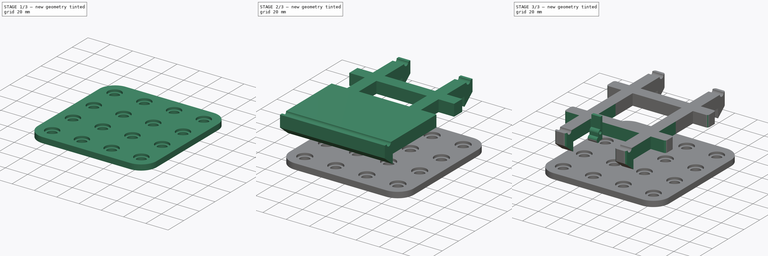
[diagram: build sequence overview — one tinted view per stage of 3, left to right]
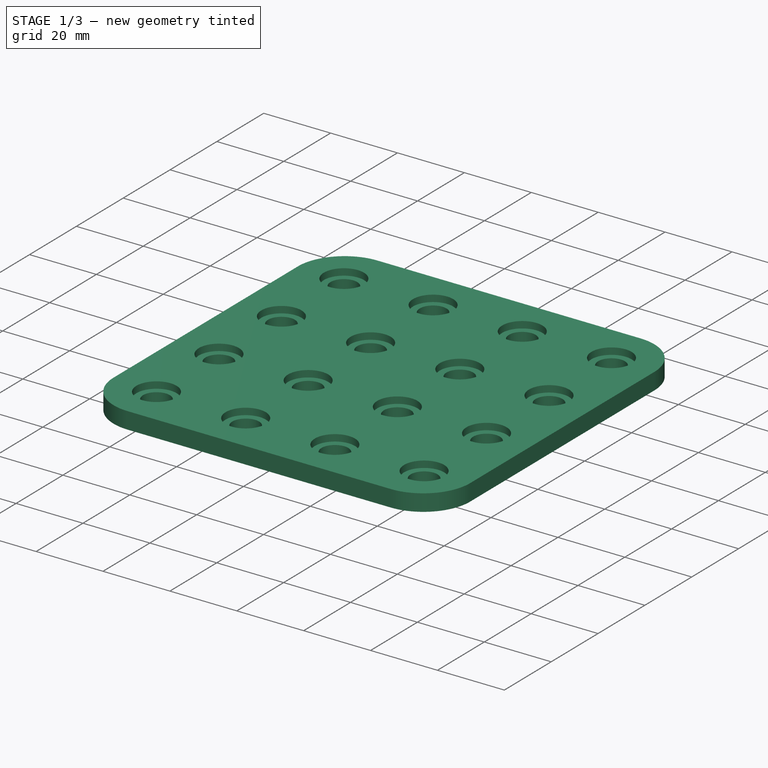
[diagram: stage 1 of 3 — iso view after this stage's code; geometry added in this stage tinted green]
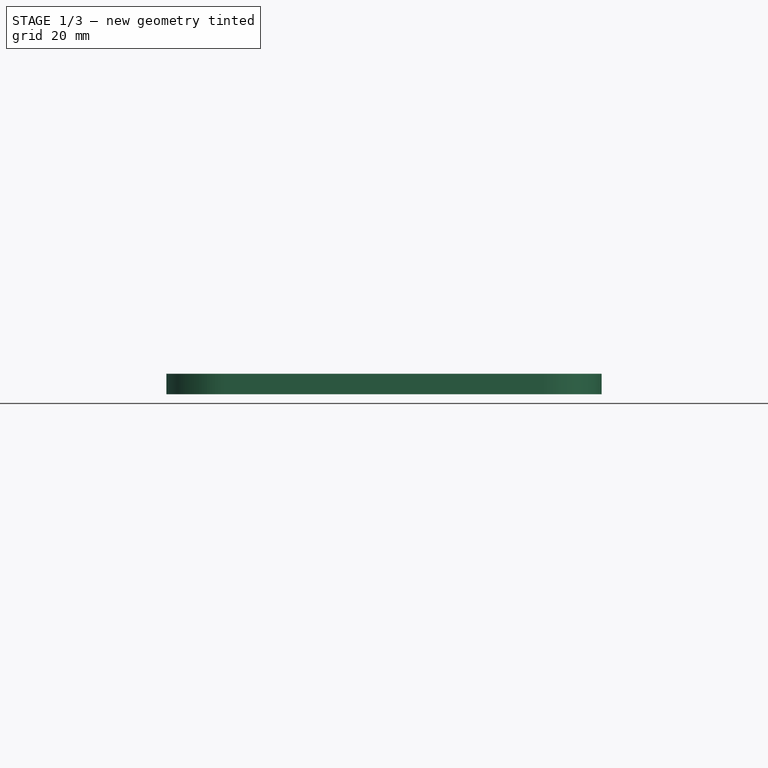
[diagram: stage 1 of 3 — front view after this stage's code; geometry added in this stage tinted green]
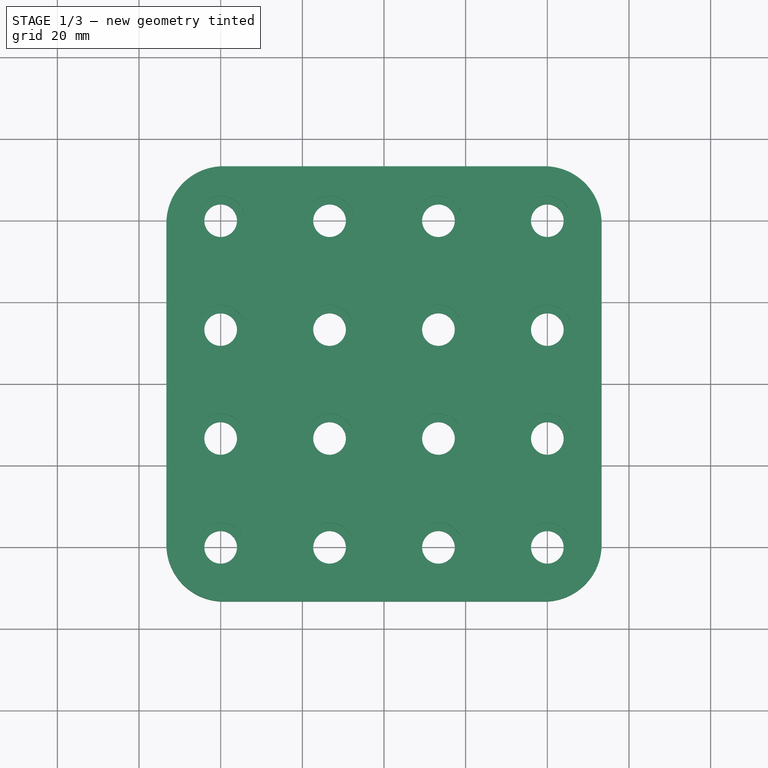
[diagram: stage 1 of 3 — top view after this stage's code; geometry added in this stage tinted green]
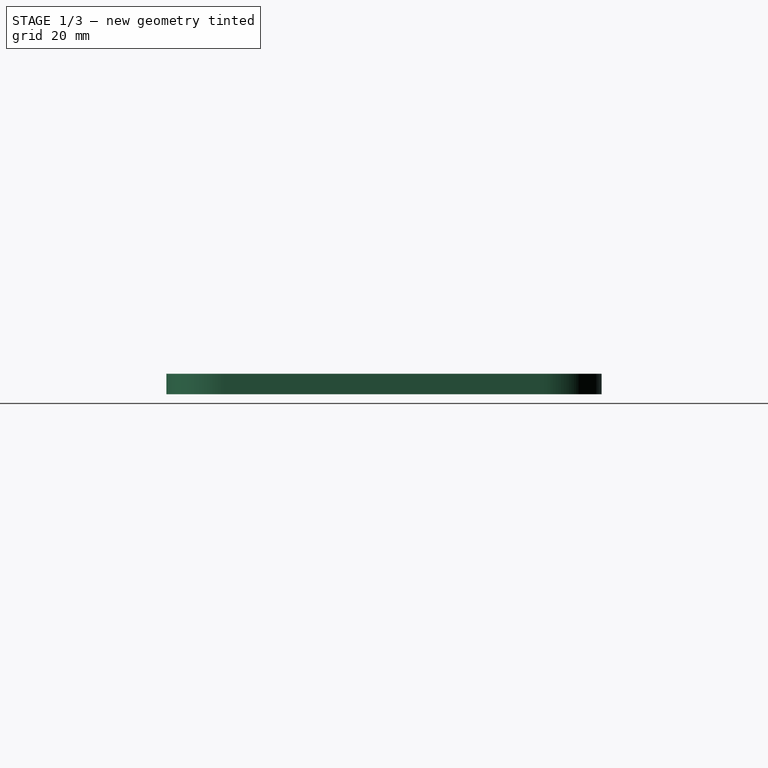
[diagram: stage 1 of 3 — right view after this stage's code; geometry added in this stage tinted green]
FCSTD DOCUMENT  (FreeCAD 0.19R24276 (Git))
Label: bushing_drill_jig
License: All rights reserved
LicenseURL: http://en.wikipedia.org/wiki/All_rights_reserved
objects: Sketcher::SketchObject×5, PartDesign::Pad×3, PartDesign::Body×3, PartDesign::Fillet×2, PartDesign::Hole×1, PartDesign::Pocket×1, PartDesign::Mirrored×1
note: 23 computed .brp shape members not serialized (recipe doc carries the construction recipe); baked Part::Feature solids carry a one-line shape summary decoded from their .brp

FEATURE [Sketcher::SketchObject] Sketch
  FullyConstrained = false
  MapMode = 5
  Support = -> [XY_Plane]
  sketch-geometry (5):
    g0: LineSegment StartX=-53.3 StartY=53.3 StartZ=0 EndX=-53.3 EndY=-53.3 EndZ=0
    g1: LineSegment StartX=-53.3 StartY=-53.3 StartZ=0 EndX=53.3 EndY=-53.3 EndZ=0
    g2: LineSegment StartX=53.3 StartY=-53.3 StartZ=0 EndX=53.3 EndY=53.3 EndZ=0
    g3: LineSegment StartX=53.3 StartY=53.3 StartZ=0 EndX=-53.3 EndY=53.3 EndZ=0
    g4: Circle CenterX=0 CenterY=0 CenterZ=0 NormalX=0 NormalY=0 NormalZ=1 AngleXU=0 Radius=75.3776
  constraints (14):
    c: Coincident(g0,g1)
    c: Coincident(g1,g2)
    c: Coincident(g2,g3)
    c: Coincident(g3,g0)
    c: Equal(g0,g1)
    c: Equal(g0,g2)
    c: Equal(g0,g3)
    c: PointOnObject(g0,g4)
    c: PointOnObject(g1,g4)
    c: PointOnObject(g2,g4)
    c: PointOnObject(g3,g4)
    c: Coincident(g4,g-1)
    c: Horizontal(g3)
    c: DistanceX(g3,g3) = 106.6
FEATURE [PartDesign::Pad] Pad
  Direction = (1,1,1)
  Length = 5
  Length2 = 100
  Profile = -> Sketch
  Type = 0
FEATURE [Sketcher::SketchObject] Sketch001
  FullyConstrained = true
  MapMode = 5
  Placement = pos=(0,0,5) rot=(0,0,1;0rad)
  Support = -> [Pad]
  sketch-geometry (34):
    g0: Circle CenterX=-40.005 CenterY=40.005 CenterZ=0 NormalX=0 NormalY=0 NormalZ=1 AngleXU=0 Radius=3
    g1: Circle CenterX=-13.335 CenterY=40.005 CenterZ=0 NormalX=0 NormalY=0 NormalZ=1 AngleXU=0 Radius=3
    g2: LineSegment StartX=-40.005 StartY=40.005 StartZ=0 EndX=-13.335 EndY=40.005 EndZ=0
    g3: Circle CenterX=13.335 CenterY=40.005 CenterZ=0 NormalX=0 NormalY=0 NormalZ=1 AngleXU=0 Radius=3
    g4: LineSegment StartX=-13.335 StartY=40.005 StartZ=0 EndX=13.335 EndY=40.005 EndZ=0
    g5: Circle CenterX=40.005 CenterY=40.005 CenterZ=0 NormalX=0 NormalY=0 NormalZ=1 AngleXU=0 Radius=3
    g6: LineSegment StartX=13.335 StartY=40.005 StartZ=0 EndX=40.005 EndY=40.005 EndZ=0
    g7: Circle CenterX=-40.005 CenterY=13.335 CenterZ=0 NormalX=0 NormalY=0 NormalZ=1 AngleXU=0 Radius=3
    g8: LineSegment StartX=-40.005 StartY=40.005 StartZ=0 EndX=-40.005 EndY=13.335 EndZ=0
    g9: Circle CenterX=-13.335 CenterY=13.335 CenterZ=0 NormalX=0 NormalY=0 NormalZ=1 AngleXU=0 Radius=3
    g10: LineSegment StartX=-40.005 StartY=13.335 StartZ=0 EndX=-13.335 EndY=13.335 EndZ=0
    g11: Circle CenterX=13.335 CenterY=13.335 CenterZ=0 NormalX=0 NormalY=0 NormalZ=1 AngleXU=0 Radius=3
    g12: LineSegment StartX=-13.335 StartY=13.335 StartZ=0 EndX=13.335 EndY=13.335 EndZ=0
    g13: Circle CenterX=40.005 CenterY=13.335 CenterZ=0 NormalX=0 NormalY=0 NormalZ=1 AngleXU=0 Radius=3
    g14: LineSegment StartX=13.335 StartY=13.335 StartZ=0 EndX=40.005 EndY=13.335 EndZ=0
    g15: Circle CenterX=-40.005 CenterY=-13.335 CenterZ=0 NormalX=0 NormalY=0 NormalZ=1 AngleXU=0 Radius=3
    g16: LineSegment StartX=-40.005 StartY=13.335 StartZ=0 EndX=-40.005 EndY=-13.335 EndZ=0
    g17: Circle CenterX=-13.335 CenterY=-13.335 CenterZ=0 NormalX=0 NormalY=0 NormalZ=1 AngleXU=0 Radius=3
    g18: LineSegment StartX=-40.005 StartY=-13.335 StartZ=0 EndX=-13.335 EndY=-13.335 EndZ=0
    g19: Circle CenterX=13.335 CenterY=-13.335 CenterZ=0 NormalX=0 NormalY=0 NormalZ=1 AngleXU=0 Radius=3
    g20: LineSegment StartX=-13.335 StartY=-13.335 StartZ=0 EndX=13.335 EndY=-13.335 EndZ=0
    g21: Circle CenterX=40.005 CenterY=-13.335 CenterZ=0 NormalX=0 NormalY=0 NormalZ=1 AngleXU=0 Radius=3
    g22: LineSegment StartX=13.335 StartY=-13.335 StartZ=0 EndX=40.005 EndY=-13.335 EndZ=0
    g23: Circle CenterX=-40.005 CenterY=-40.005 CenterZ=0 NormalX=0 NormalY=0 NormalZ=1 AngleXU=0 Radius=3
    g24: LineSegment StartX=-40.005 StartY=-13.335 StartZ=0 EndX=-40.005 EndY=-40.005 EndZ=0
    g25: Circle CenterX=-13.335 CenterY=-40.005 CenterZ=0 NormalX=0 NormalY=0 NormalZ=1 AngleXU=0 Radius=3
    g26: LineSegment StartX=-40.005 StartY=-40.005 StartZ=0 EndX=-13.335 EndY=-40.005 EndZ=0
    g27: Circle CenterX=13.335 CenterY=-40.005 CenterZ=0 NormalX=0 NormalY=0 NormalZ=1 AngleXU=0 Radius=3
    g28: LineSegment StartX=-13.335 StartY=-40.005 StartZ=0 EndX=13.335 EndY=-40.005 EndZ=0
    g29: Circle CenterX=40.005 CenterY=-40.005 CenterZ=0 NormalX=0 NormalY=0 NormalZ=1 AngleXU=0 Radius=3
    g30: LineSegment StartX=13.335 StartY=-40.005 StartZ=0 EndX=40.005 EndY=-40.005 EndZ=0
    g31: LineSegment StartX=-13.335 StartY=-13.335 StartZ=0 EndX=0 EndY=0 EndZ=0
    g32: LineSegment StartX=0 StartY=0 StartZ=0 EndX=13.335 EndY=13.335 EndZ=0
    g33: LineSegment StartX=0 StartY=0 StartZ=0 EndX=-13.335 EndY=13.335 EndZ=0
  constraints (84):
    c: Diameter(g0) = 6
    c: Diameter(g1) = 6
    c: Coincident(g0,g2)
    c: Coincident(g1,g2)
    c: Distance(g2) = 26.67
    c: Diameter(g3) = 6
    c: Coincident(g1,g4)
    c: Coincident(g3,g4)
    c: Equal(g2,g4)
    c: Parallel(g4,g2)
    c: Diameter(g5) = 6
    c: Coincident(g3,g6)
    c: Coincident(g5,g6)
    c: Equal(g2,g6)
    c: Parallel(g6,g2)
    c: Diameter(g7) = 6
    c: Coincident(g0,g8)
    c: Coincident(g7,g8)
    c: Equal(g8,g2)
    c: Perpendicular(g8,g2)
    c: Diameter(g9) = 6
    c: Coincident(g7,g10)
    c: Coincident(g9,g10)
    c: Equal(g2,g10)
    c: Parallel(g10,g2)
    c: Diameter(g11) = 6
    c: Coincident(g9,g12)
    c: Coincident(g11,g12)
    c: Equal(g2,g12)
    c: Parallel(g12,g2)
    c: Diameter(g13) = 6
    c: Coincident(g11,g14)
    c: Coincident(g13,g14)
    c: Equal(g2,g14)
    c: Parallel(g14,g2)
    c: Diameter(g15) = 6
    c: Coincident(g7,g16)
    c: Coincident(g15,g16)
    c: Equal(g8,g16)
    c: Perpendicular(g16,g2)
    c: Diameter(g17) = 6
    c: Coincident(g15,g18)
    c: Coincident(g17,g18)
    c: Equal(g2,g18)
    c: Parallel(g18,g2)
    c: Diameter(g19) = 6
    c: Coincident(g17,g20)
    c: Coincident(g19,g20)
    c: Equal(g2,g20)
    c: Parallel(g20,g2)
    c: Diameter(g21) = 6
    c: Coincident(g19,g22)
    c: Coincident(g21,g22)
    c: Equal(g2,g22)
    c: Parallel(g22,g2)
    c: Diameter(g23) = 6
    c: Coincident(g15,g24)
    c: Coincident(g23,g24)
    c: Equal(g8,g24)
    c: Perpendicular(g24,g2)
    c: Diameter(g25) = 6
    c: Coincident(g23,g26)
    c: Coincident(g25,g26)
    c: Equal(g2,g26)
    c: Parallel(g26,g2)
    c: Diameter(g27) = 6
    c: Coincident(g25,g28)
    c: Coincident(g27,g28)
    c: Equal(g2,g28)
    c: Parallel(g28,g2)
    c: Diameter(g29) = 6
    c: Coincident(g27,g30)
    c: Coincident(g29,g30)
    c: Equal(g2,g30)
    c: Parallel(g30,g2)
    c: Horizontal(g2)
    c: Coincident(g31,g17)
    c: Coincident(g31,g-1)
    c: Coincident(g31,g32)
    c: Coincident(g32,g11)
    c: Coincident(g-1,g33)
    c: Coincident(g33,g9)
    c: Equal(g33,g31)
    c: Equal(g31,g32)
FEATURE [PartDesign::Hole] Hole
  BaseFeature = -> Pad
  Depth = 25
  DepthType = 1
  Diameter = 8
  DrillForDepth = false
  DrillPoint = 1
  DrillPointAngle = 118
  HoleCutCountersinkAngle = 90
  HoleCutCustomValues = false
  HoleCutDepth = 2
  HoleCutDiameter = 12
  HoleCutType = 1
  ModelActualThread = false
  Profile = -> Sketch001
  Tapered = false
  TaperedAngle = 90
  ThreadAngle = 0
  ThreadClass = 0
  ThreadCutOffInner = 0
  ThreadCutOffOuter = 0
  ThreadDirection = 0
  ThreadFit = 0
  ThreadPitch = 0
  ThreadSize = 0
  ThreadType = 0
  Threaded = false
FEATURE [PartDesign::Body] Body001
  Group = -> [Sketch002,Pad001,Sketch004,Pocket,Mirrored,Fillet]
  Origin = -> Origin001
  Tip = -> Fillet
FEATURE [PartDesign::Fillet] Fillet001
  Base = -> Hole [Edge2,Edge8,Edge5,Edge1]
  BaseFeature = -> Hole
  Radius = 14
  SupportTransform = false
FEATURE [PartDesign::Body] Body
  Group = -> [Sketch,Pad,Sketch001,Hole,Fillet001]
  Origin = -> Origin
  Tip = -> Fillet001
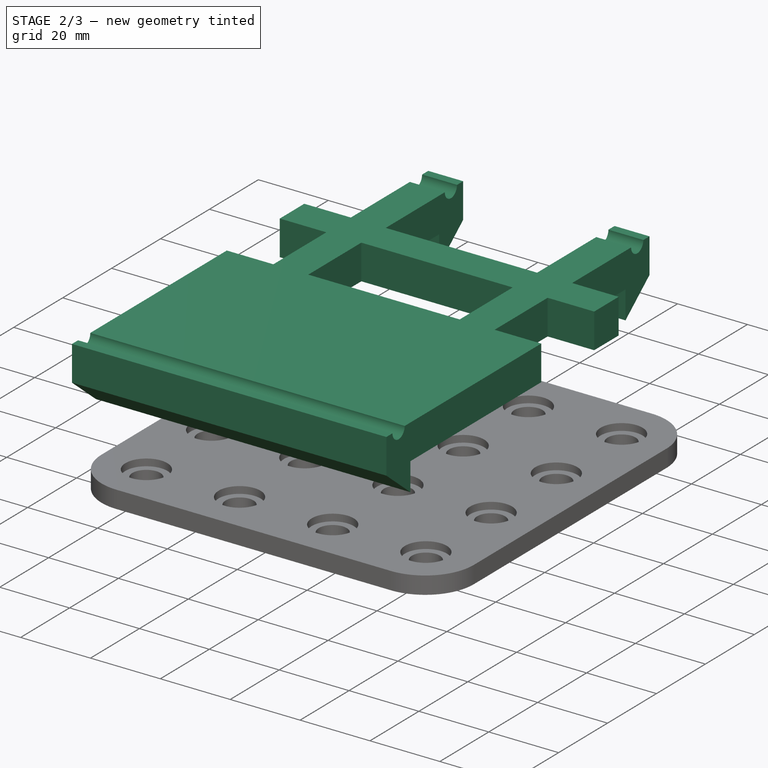
[diagram: stage 2 of 3 — iso view after this stage's code; geometry added in this stage tinted green]
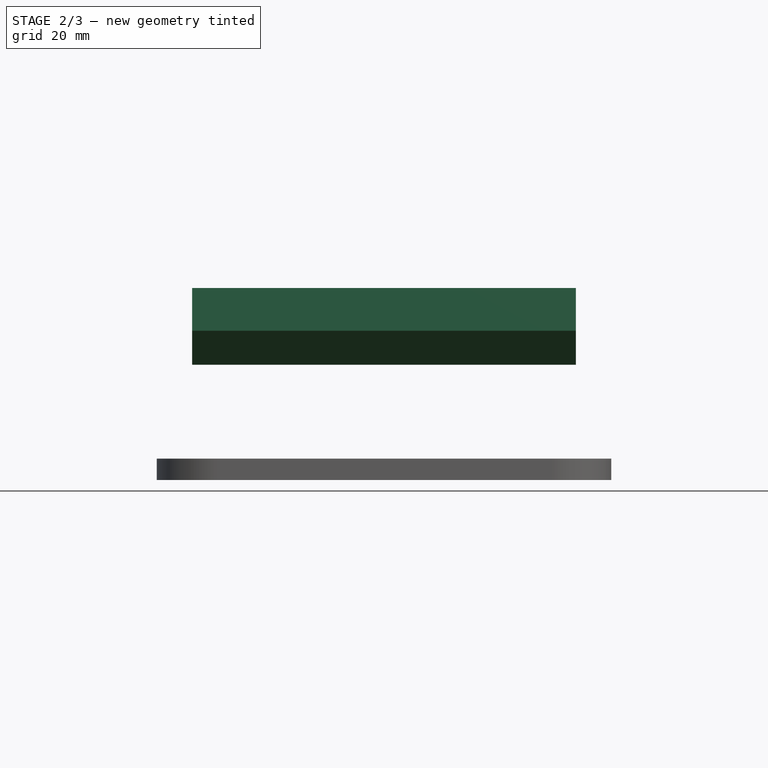
[diagram: stage 2 of 3 — front view after this stage's code; geometry added in this stage tinted green]
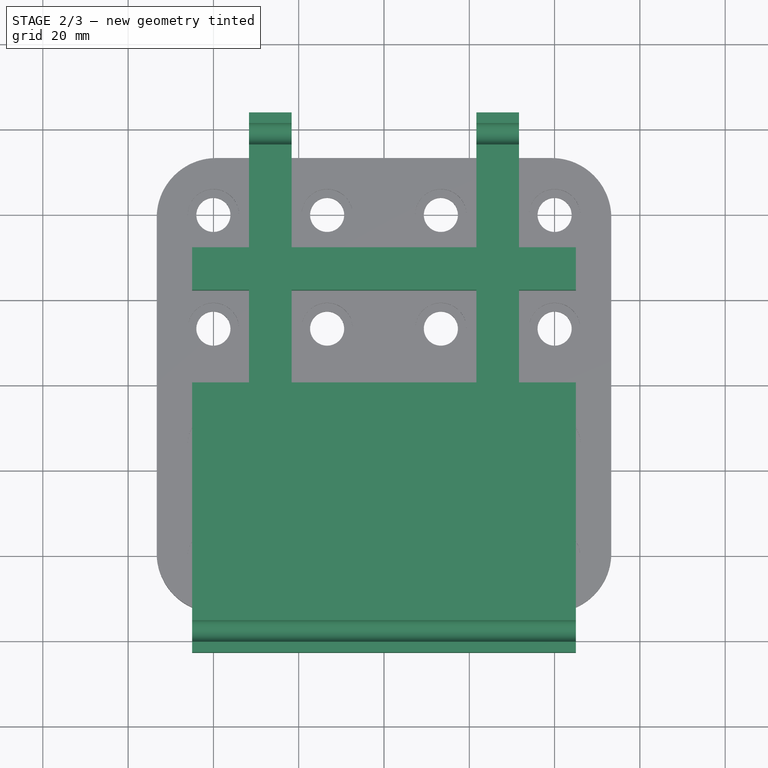
[diagram: stage 2 of 3 — top view after this stage's code; geometry added in this stage tinted green]
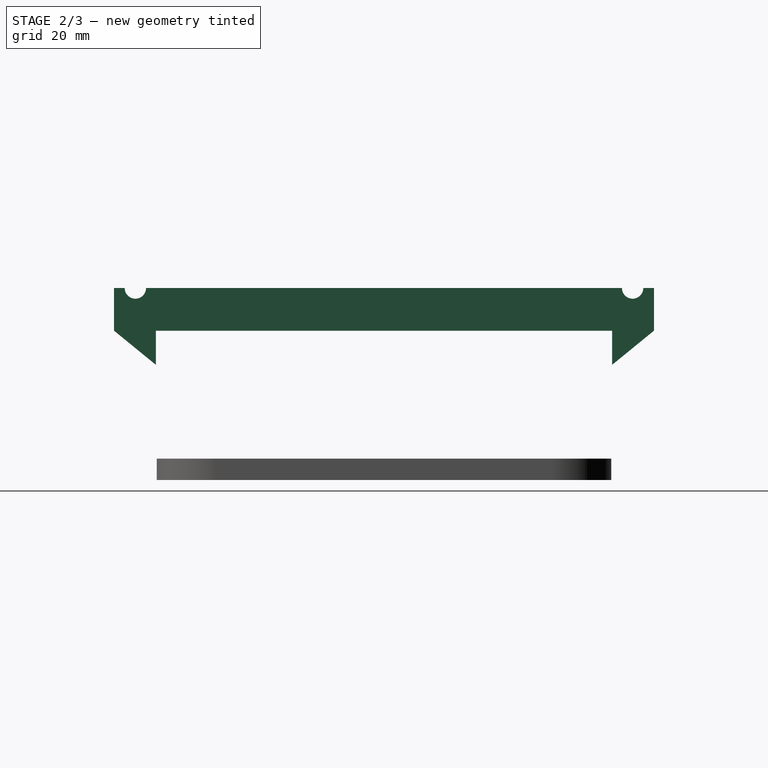
[diagram: stage 2 of 3 — right view after this stage's code; geometry added in this stage tinted green]
FEATURE [Sketcher::SketchObject] Sketch002
  FullyConstrained = false
  MapMode = 5
  Placement = pos=(0,0,0) rot=(0.57735,0.57735,0.57735;2.0944rad)
  Support = -> [YZ_Plane001]
  sketch-geometry (17):
    g0: LineSegment StartX=-63.3 StartY=35 StartZ=0 EndX=0 EndY=0 EndZ=0
    g1: LineSegment StartX=0 StartY=0 StartZ=0 EndX=63.3 EndY=35 EndZ=0
    g2: LineSegment StartX=63.3 StartY=35 StartZ=0 EndX=63.3 EndY=45 EndZ=0
    g3: LineSegment StartX=-63.3 StartY=45 StartZ=0 EndX=-63.3 EndY=35 EndZ=0
    g4: LineSegment StartX=-63.3 StartY=35 StartZ=0 EndX=63.3 EndY=35 EndZ=0
    g5: LineSegment StartX=-63.3 StartY=35 StartZ=0 EndX=-53.5 EndY=27 EndZ=0
    g6: LineSegment StartX=-53.5 StartY=27 StartZ=0 EndX=-53.5 EndY=35 EndZ=0
    g7: LineSegment StartX=-53.5 StartY=35 StartZ=0 EndX=53.5 EndY=35 EndZ=0
    g8: LineSegment StartX=53.5 StartY=35 StartZ=0 EndX=53.5 EndY=27 EndZ=0
    g9: LineSegment StartX=53.5 StartY=27 StartZ=0 EndX=63.3 EndY=35 EndZ=0
    g10: LineSegment StartX=-63.3 StartY=45 StartZ=0 EndX=-60.8 EndY=45 EndZ=0
    g11: ArcOfCircle CenterX=-58.3 CenterY=45 CenterZ=0 NormalX=0 NormalY=0 NormalZ=1 AngleXU=0 Radius=2.5 StartAngle=3.14159 EndAngle=6.28319
    g12: LineSegment StartX=-55.8 StartY=45 StartZ=0 EndX=55.8 EndY=45 EndZ=0
    g13: LineSegment StartX=-60.8 StartY=45 StartZ=0 EndX=-55.8 EndY=45 EndZ=0
    g14: LineSegment StartX=55.8 StartY=45 StartZ=0 EndX=60.8 EndY=45 EndZ=0
    g15: LineSegment StartX=60.8 StartY=45 StartZ=0 EndX=63.3 EndY=45 EndZ=0
    g16: ArcOfCircle CenterX=58.3 CenterY=45 CenterZ=0 NormalX=0 NormalY=0 NormalZ=1 AngleXU=0 Radius=2.5 StartAngle=3.14159 EndAngle=6.28319
  constraints (48):
    c: Coincident(g0,g-1)
    c: Coincident(g0,g1)
    c: Vertical(g2)
    c: Vertical(g3)
    c: Equal(g0,g1)
    c: DistanceX(g0,g1) = 126.6
    c: DistanceY(g3,g3) = 10
    c: DistanceY(g-1,g0) = 35
    c: Coincident(g2,g1)
    c: Coincident(g0,g3)
    c: Coincident(g4,g3)
    c: Coincident(g4,g2)
    c: Coincident(g3,g5)
    c: Coincident(g5,g6)
    c: PointOnObject(g6,g4)
    c: Coincident(g6,g7)
    c: PointOnObject(g7,g4)
    c: Coincident(g7,g8)
    c: Vertical(g8)
    c: Coincident(g8,g9)
    c: Coincident(g9,g2)
    c: Vertical(g6)
    c: Equal(g6,g8)
    c: Horizontal(g4)
    c: Equal(g5,g9)
    c: DistanceX(g7,g7) = 107
    c: DistanceY(g6,g6) = 8
    c: Equal(g2,g3)
    c: Coincident(g10,g3)
    c: Horizontal(g10)
    c: Coincident(g11,g10)
    c: Coincident(g12,g11)
    c: Horizontal(g12)
    c: Coincident(g13,g10)
    c: Coincident(g13,g11)
    c: Horizontal(g13)
    c: PointOnObject(g11,g13)
    c: DistanceX(g10,g10) = 2.5
    c: DistanceX(g13,g13) = 5
    c: Coincident(g14,g12)
    c: Horizontal(g14)
    c: Coincident(g15,g14)
    c: Coincident(g15,g2)
    c: PointOnObject(g16,g14)
    c: Coincident(g16,g12)
    c: Coincident(g16,g15)
    c: Equal(g15,g10)
    c: Equal(g13,g14)
FEATURE [PartDesign::Pad] Pad001
  Direction = (1,1,1)
  Length = 90
  Length2 = 1
  Midplane = true
  Placement = pos=(0,0,0) rot=(0.57735,0.57735,0.57735;2.0944rad)
  Profile = -> Sketch002
  Type = 0
FEATURE [PartDesign::Body] Body002
  Group = -> [Sketch003,Pad002]
  Origin = -> Origin002
  Tip = -> Pad002
FEATURE [Sketcher::SketchObject] Sketch004
  FullyConstrained = false
  MapMode = 5
  Placement = pos=(-1.26e-14,1.98e-14,45) rot=(0,0,-1;1.5708rad)
  Support = -> [Pad001]
  sketch-geometry (34):
    g0: LineSegment StartX=-71.67 StartY=71.67 StartZ=0 EndX=-31.67 EndY=71.67 EndZ=0
    g1: LineSegment StartX=-31.67 StartY=71.67 StartZ=0 EndX=-31.67 EndY=31.67 EndZ=0
    g2: LineSegment StartX=-31.67 StartY=31.67 StartZ=0 EndX=-71.67 EndY=31.67 EndZ=0
    g3: LineSegment StartX=-71.67 StartY=31.67 StartZ=0 EndX=-71.67 EndY=71.67 EndZ=0
    g4: LineSegment StartX=-21.67 StartY=71.67 StartZ=0 EndX=0 EndY=71.67 EndZ=0
    g5: LineSegment StartX=0 StartY=71.67 StartZ=0 EndX=0 EndY=31.67 EndZ=0
    g6: LineSegment StartX=0 StartY=31.67 StartZ=0 EndX=-21.67 EndY=31.67 EndZ=0
    g7: LineSegment StartX=-21.67 StartY=31.67 StartZ=0 EndX=-21.67 EndY=71.67 EndZ=0
    g8: LineSegment StartX=-71.67 StartY=21.67 StartZ=0 EndX=-31.67 EndY=21.67 EndZ=0
    g9: LineSegment StartX=-31.67 StartY=21.67 StartZ=0 EndX=-31.67 EndY=-21.67 EndZ=0
    g10: LineSegment StartX=-31.67 StartY=-21.67 StartZ=0 EndX=-71.67 EndY=-21.67 EndZ=0
    g11: LineSegment StartX=-71.67 StartY=-21.67 StartZ=0 EndX=-71.67 EndY=21.67 EndZ=0
    g12: LineSegment StartX=-71.67 StartY=-31.67 StartZ=0 EndX=-31.67 EndY=-31.67 EndZ=0
    g13: LineSegment StartX=-31.67 StartY=-31.67 StartZ=0 EndX=-31.67 EndY=-71.67 EndZ=0
    g14: LineSegment StartX=-31.67 StartY=-71.67 StartZ=0 EndX=-71.67 EndY=-71.67 EndZ=0
    g15: LineSegment StartX=-71.67 StartY=-71.67 StartZ=0 EndX=-71.67 EndY=-31.67 EndZ=0
    g16: LineSegment StartX=-21.67 StartY=21.67 StartZ=0 EndX=0 EndY=21.67 EndZ=0
    g17: LineSegment StartX=0 StartY=21.67 StartZ=0 EndX=0 EndY=-21.67 EndZ=0
    g18: LineSegment StartX=0 StartY=-21.67 StartZ=0 EndX=-21.67 EndY=-21.67 EndZ=0
    g19: LineSegment StartX=-21.67 StartY=-21.67 StartZ=0 EndX=-21.67 EndY=21.67 EndZ=0
    g20: LineSegment StartX=-21.67 StartY=-31.67 StartZ=0 EndX=0 EndY=-31.67 EndZ=0
    g21: LineSegment StartX=0 StartY=-31.67 StartZ=0 EndX=0 EndY=-71.67 EndZ=0
    g22: LineSegment StartX=0 StartY=-71.67 StartZ=0 EndX=-21.67 EndY=-71.67 EndZ=0
    g23: LineSegment StartX=-21.67 StartY=-71.67 StartZ=0 EndX=-21.67 EndY=-31.67 EndZ=0
    g24: LineSegment StartX=-31.67 StartY=31.67 StartZ=0 EndX=-21.67 EndY=31.67 EndZ=0
    g25: LineSegment StartX=-21.67 StartY=31.67 StartZ=0 EndX=-21.67 EndY=21.67 EndZ=0
    g26: LineSegment StartX=-21.67 StartY=21.67 StartZ=0 EndX=-31.67 EndY=21.67 EndZ=0
    g27: LineSegment StartX=-31.67 StartY=21.67 StartZ=0 EndX=-31.67 EndY=31.67 EndZ=0
    g28: LineSegment StartX=-31.67 StartY=-21.67 StartZ=0 EndX=-31.67 EndY=-31.67 EndZ=0
    g29: LineSegment StartX=-31.67 StartY=-31.67 StartZ=0 EndX=-21.67 EndY=-31.67 EndZ=0
    g30: LineSegment StartX=-21.67 StartY=-31.67 StartZ=0 EndX=-21.67 EndY=-21.67 EndZ=0
    g31: LineSegment StartX=-21.67 StartY=-21.67 StartZ=0 EndX=-31.67 EndY=-21.67 EndZ=0
    g32: LineSegment StartX=-21.67 StartY=21.67 StartZ=0 EndX=0 EndY=0 EndZ=0
    g33: LineSegment StartX=0 StartY=0 StartZ=0 EndX=-21.67 EndY=-21.67 EndZ=0
  constraints (92):
    c: Coincident(g0,g1)
    c: Coincident(g1,g2)
    c: Coincident(g2,g3)
    c: Coincident(g3,g0)
    c: Horizontal(g0)
    c: Horizontal(g2)
    c: Vertical(g1)
    c: Vertical(g3)
    c: DistanceX(g1,g-1) = 31.67
    c: DistanceY(g-1,g1) = 31.67
    c: Coincident(g4,g5)
    c: Coincident(g5,g6)
    c: Coincident(g6,g7)
    c: Coincident(g7,g4)
    c: Horizontal(g4)
    c: Horizontal(g6)
    c: Vertical(g5)
    c: Vertical(g7)
    c: Coincident(g8,g9)
    c: Coincident(g9,g10)
    c: Coincident(g10,g11)
    c: Coincident(g11,g8)
    c: Horizontal(g8)
    c: Horizontal(g10)
    c: Vertical(g9)
    c: Vertical(g11)
    c: Coincident(g12,g13)
    c: Coincident(g13,g14)
    c: Coincident(g14,g15)
    c: Coincident(g15,g12)
    c: Horizontal(g12)
    c: Horizontal(g14)
    c: Vertical(g13)
    c: Vertical(g15)
    c: Coincident(g16,g17)
    c: Coincident(g17,g18)
    c: Coincident(g18,g19)
    c: Coincident(g19,g16)
    c: Horizontal(g16)
    c: Horizontal(g18)
    c: Vertical(g17)
    c: Vertical(g19)
    c: Coincident(g20,g21)
    c: Coincident(g21,g22)
    c: Coincident(g22,g23)
    c: Coincident(g23,g20)
    c: Horizontal(g20)
    c: Horizontal(g22)
    c: Vertical(g21)
    c: Vertical(g23)
    c: PointOnObject(g16,g-2)
    c: PointOnObject(g5,g-2)
    c: PointOnObject(g20,g-2)
    c: Coincident(g1,g24)
    c: Coincident(g24,g6)
    c: Coincident(g24,g25)
    c: Coincident(g25,g16)
    c: Coincident(g25,g26)
    c: Coincident(g26,g8)
    c: Horizontal(g26)
    c: Coincident(g26,g27)
    c: Coincident(g27,g24)
    c: Coincident(g9,g28)
    c: Coincident(g28,g12)
    c: Coincident(g28,g29)
    c: Coincident(g29,g20)
    c: Coincident(g29,g30)
    c: Coincident(g30,g18)
    c: Vertical(g30)
    c: Coincident(g30,g31)
    c: Coincident(g31,g28)
    c: Horizontal(g31)
    c: Vertical(g28)
    c: Vertical(g27)
    c: Horizontal(g24)
    c: Horizontal(g29)
    c: Equal(g28,g31)
    c: Equal(g31,g27)
    c: Vertical(g25)
    c: DistanceX(g24,g24) = 10
    c: Equal(g12,g10)
    c: Equal(g10,g2)
    c: Equal(g12,g13)
    c: Equal(g23,g13)
    c: Coincident(g16,g32)
    c: Coincident(g32,g-1)
    c: Coincident(g32,g33)
    c: Coincident(g33,g18)
    c: Equal(g33,g32)
    c: Equal(g2,g1)
    c: Equal(g7,g1)
    c: DistanceY(g1,g1) = 40
FEATURE [PartDesign::Pocket] Pocket
  BaseFeature = -> Pad001
  Length = 5
  Length2 = 100
  Placement = pos=(0,0,0) rot=(0.57735,0.57735,0.57735;2.0944rad)
  Profile = -> Sketch004
  Type = 1
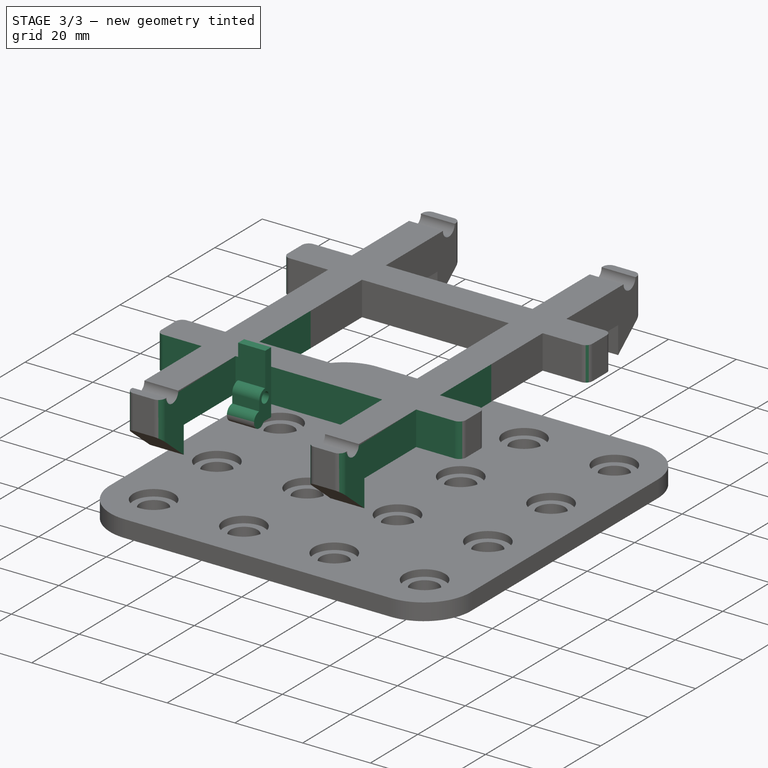
[diagram: stage 3 of 3 — iso view after this stage's code; geometry added in this stage tinted green]
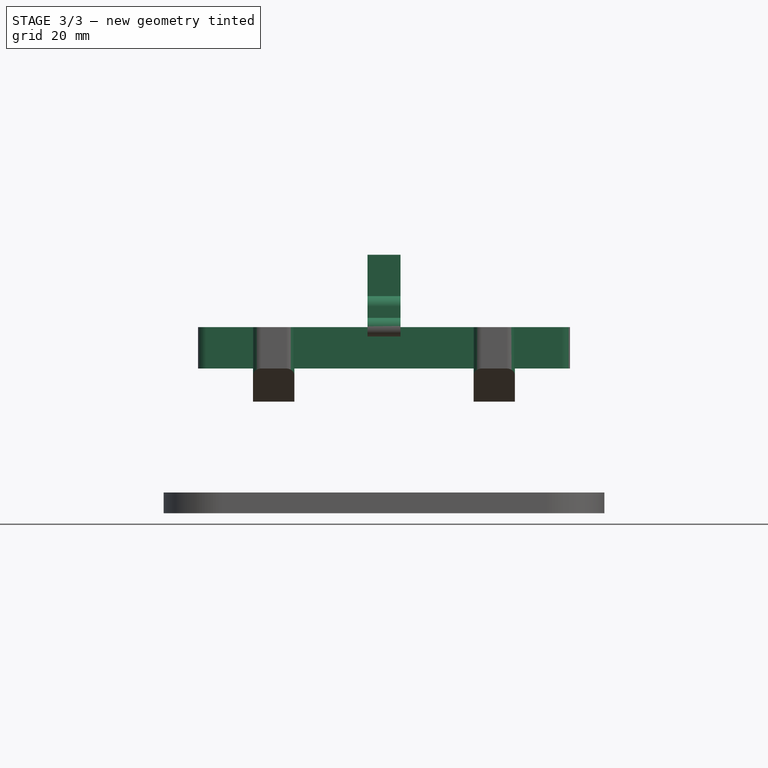
[diagram: stage 3 of 3 — front view after this stage's code; geometry added in this stage tinted green]
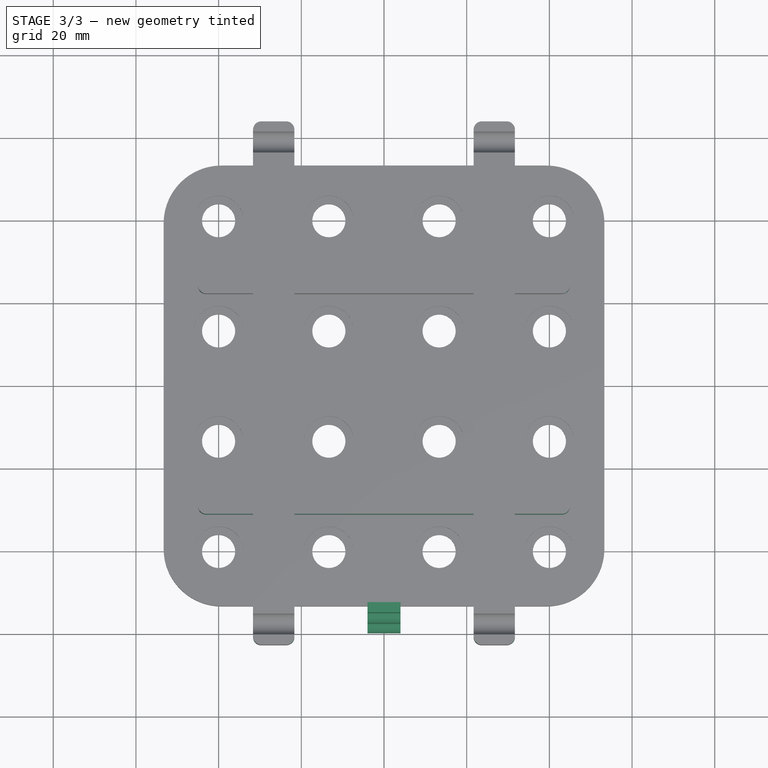
[diagram: stage 3 of 3 — top view after this stage's code; geometry added in this stage tinted green]
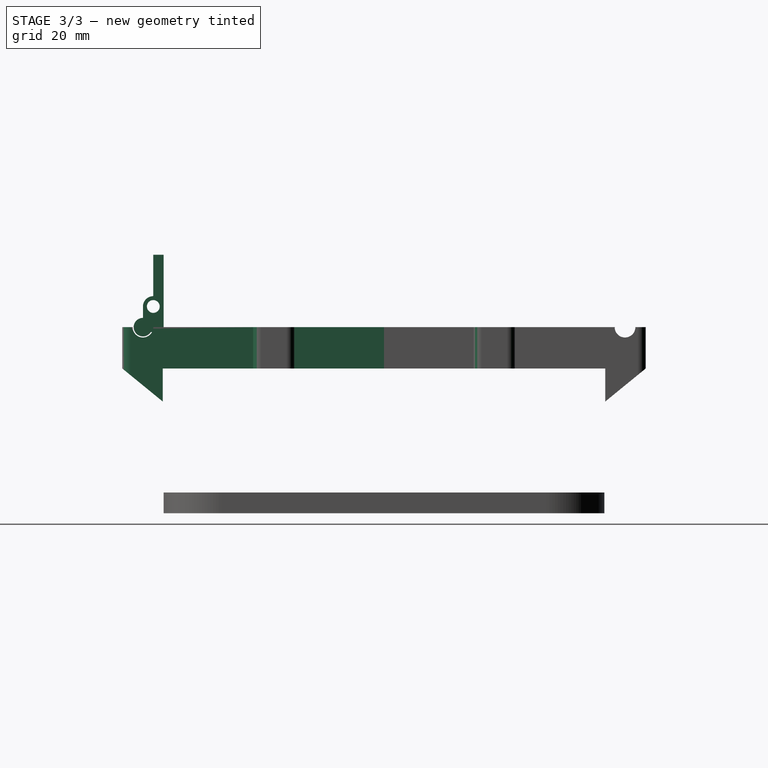
[diagram: stage 3 of 3 — right view after this stage's code; geometry added in this stage tinted green]
FEATURE [Sketcher::SketchObject] Sketch003
  FullyConstrained = false
  MapMode = 5
  Placement = pos=(0,0,0) rot=(0.57735,0.57735,0.57735;2.0944rad)
  Support = -> [YZ_Plane002]
  sketch-geometry (11):
    g0: ArcOfCircle CenterX=-58.3 CenterY=45 CenterZ=0 NormalX=0 NormalY=0 NormalZ=1 AngleXU=0 Radius=2.25 StartAngle=1.5708 EndAngle=5.7419
    g1: Circle CenterX=-55.8 CenterY=50 CenterZ=0 NormalX=0 NormalY=0 NormalZ=1 AngleXU=0 Radius=1.55
    g2: LineSegment StartX=-56.3716 StartY=43.8407 StartZ=0 EndX=-53.3 EndY=43.8407 EndZ=0
    g3: LineSegment StartX=-53.3 StartY=43.8407 StartZ=0 EndX=-53.3 EndY=62.5 EndZ=0
    g4: LineSegment StartX=-53.3 StartY=62.5 StartZ=0 EndX=-55.8 EndY=62.5 EndZ=0
    g5: LineSegment StartX=-55.8 StartY=62.5 StartZ=0 EndX=-55.8 EndY=52.5 EndZ=0
    g6: LineSegment StartX=-58.3 StartY=50 StartZ=0 EndX=-58.3 EndY=47.25 EndZ=0
    g7: LineSegment StartX=-55.8 StartY=52.5 StartZ=0 EndX=-55.8 EndY=50 EndZ=0
    g8: LineSegment StartX=-58.3 StartY=50 StartZ=0 EndX=-55.8 EndY=50 EndZ=0
    g9: ArcOfCircle CenterX=-55.8 CenterY=50 CenterZ=0 NormalX=0 NormalY=0 NormalZ=1 AngleXU=0 Radius=2.5 StartAngle=1.5708 EndAngle=3.14159
    g10: LineSegment StartX=-58.3 StartY=45 StartZ=0 EndX=-58.3 EndY=47.25 EndZ=0
  constraints (30):
    c: DistanceX(g0,g-1) = 58.3
    c: DistanceY(g-1,g0) = 45
    c: Diameter(g0) = 4.5
    c: Diameter(g1) = 3.1
    c: Horizontal(g2)
    c: Coincident(g2,g3)
    c: Vertical(g3)
    c: Coincident(g3,g4)
    c: Horizontal(g4)
    c: Coincident(g4,g5)
    c: Vertical(g5)
    c: Coincident(g6,g0)
    c: Vertical(g6)
    c: Coincident(g2,g0)
    c: Coincident(g7,g5)
    c: Coincident(g7,g1)
    c: Vertical(g7)
    c: Coincident(g8,g6)
    c: Coincident(g8,g1)
    c: Horizontal(g8)
    c: Coincident(g9,g1)
    c: Coincident(g9,g6)
    c: Coincident(g9,g5)
    c: DistanceY(g0,g1) = 5
    c: DistanceX(g0,g1) = 2.5
    c: DistanceX(g1,g2) = 2.5
    c: Coincident(g10,g0)
    c: Coincident(g10,g0)
    c: Vertical(g10)
    c: DistanceY(g5,g5) = 10
FEATURE [PartDesign::Pad] Pad002
  Direction = (1,1,1)
  Length = 8
  Length2 = 100
  Midplane = true
  Placement = pos=(0,0,0) rot=(0.57735,0.57735,0.57735;2.0944rad)
  Profile = -> Sketch003
  Type = 0
FEATURE [PartDesign::Mirrored] Mirrored
  BaseFeature = -> Pocket
  MirrorPlane = -> Sketch004 [V_Axis]
  Originals = -> [Pocket]
  Placement = pos=(0,0,0) rot=(0.57735,0.57735,0.57735;2.0944rad)
FEATURE [PartDesign::Fillet] Fillet
  Base = -> Mirrored [Edge3,Edge1,Edge141,Edge133,Edge119,Edge106,Edge102,Edge115,Edge123,Edge128,Edge91,Edge96,Edge95,Edge55,Edge129,Edge124]
  BaseFeature = -> Mirrored
  Placement = pos=(0,0,0) rot=(0.57735,0.57735,0.57735;2.0944rad)
  Radius = 2
  SupportTransform = false
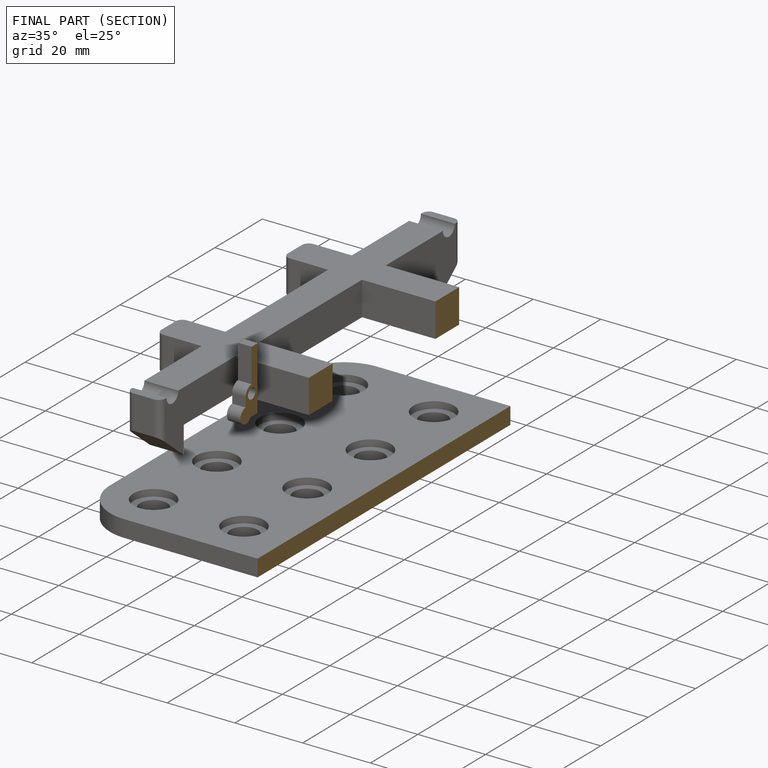
[diagram: finished part — half-section view (interior)]
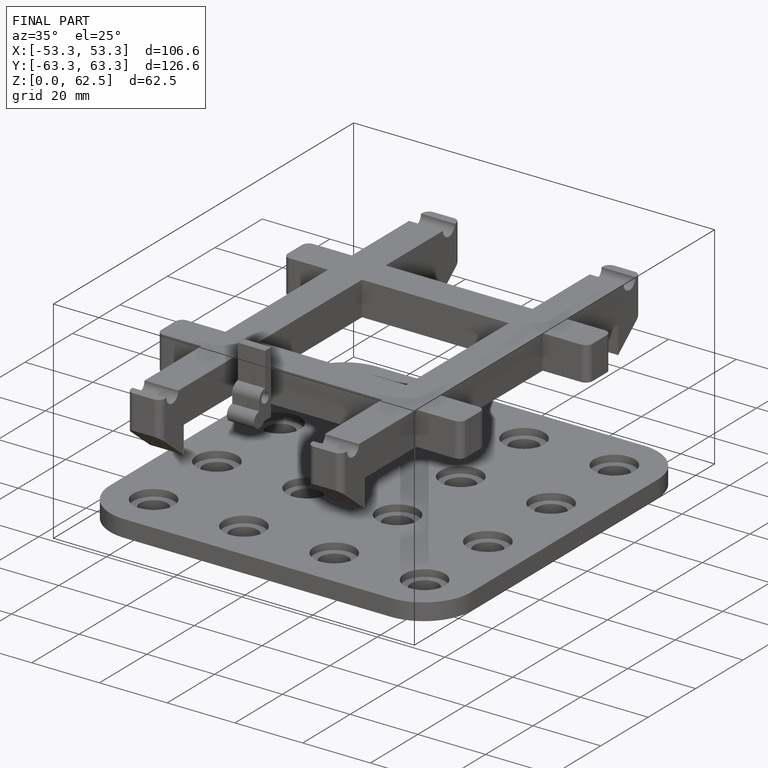
[diagram: finished part — iso view with bounding-box wireframe]
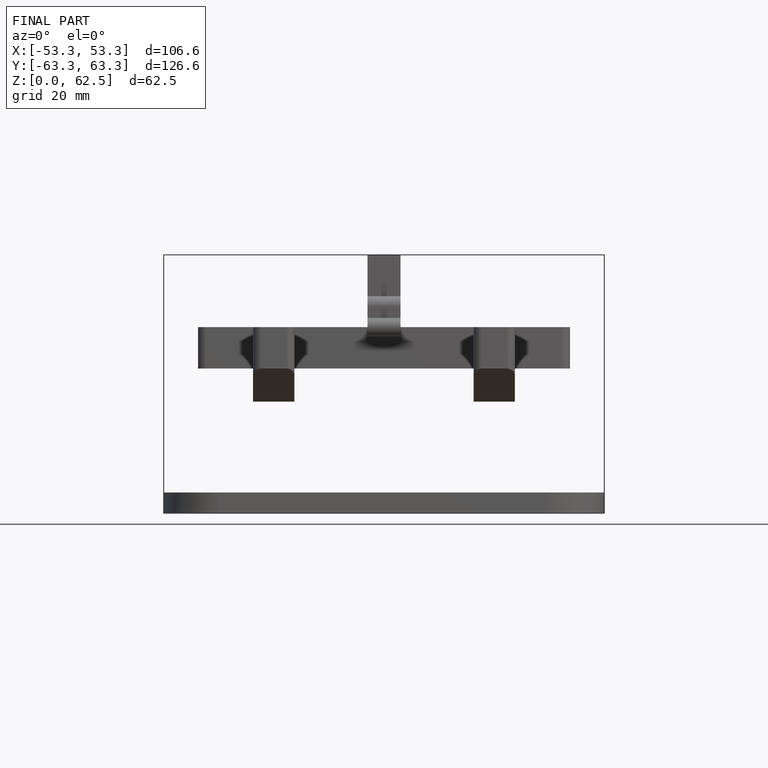
[diagram: finished part — front view with bounding-box wireframe]
